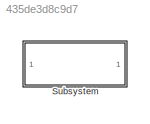
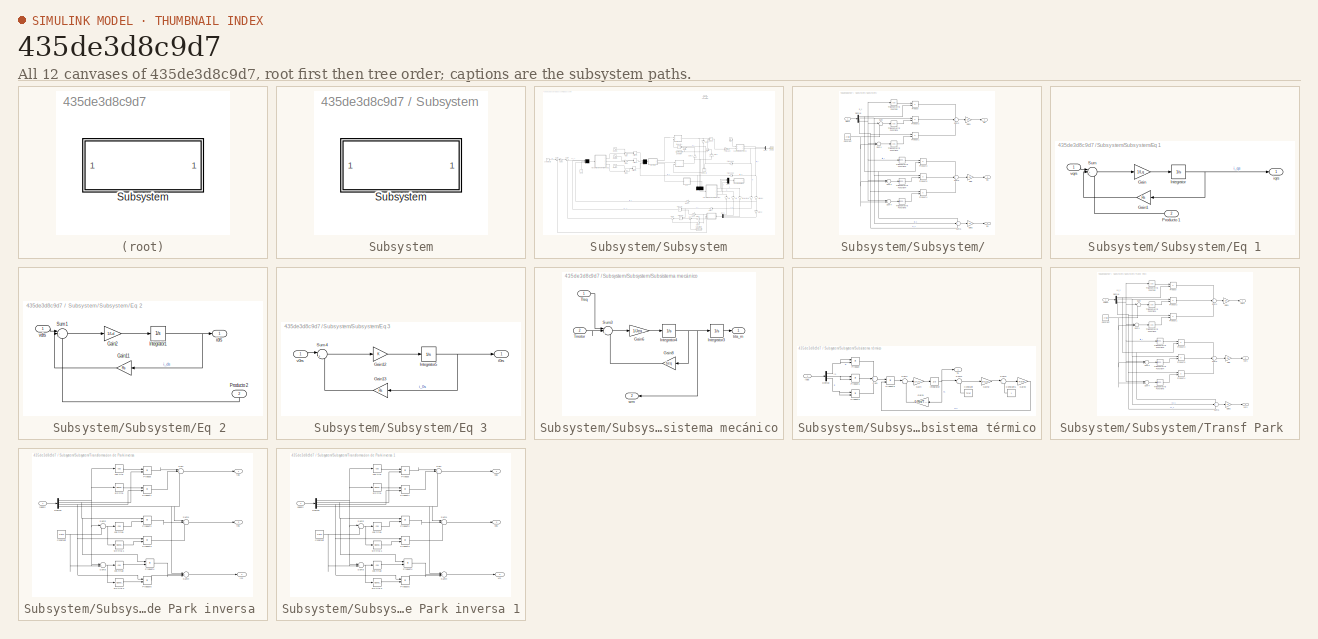
[diagram: thumbnail index - all 12 canvases of the model, root first then tree order]
MODEL slx_435de3d8c9d7
KIND model
CONFIG AbsTol = auto
CONFIG EnableMultiTasking = off
CONFIG FixedStep = auto
CONFIG MaxStep = auto
CONFIG MinStep = auto
CONFIG RelTol = 1e-3
CONFIG SampleTimeConstraint = Unconstrained
CONFIG Solver = VariableStepAuto
CONFIG SolverName = VariableStepAuto
CONFIG StartTime = 0.0
CONFIG StopTime = 10.0
BLOCK [SubSystem] Subsystem
  Ports = []
  RequestExecContextInheritance = off
  Variant = off
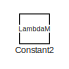
[diagram: Subsystem/Subsystem - part 1/5, top right region]
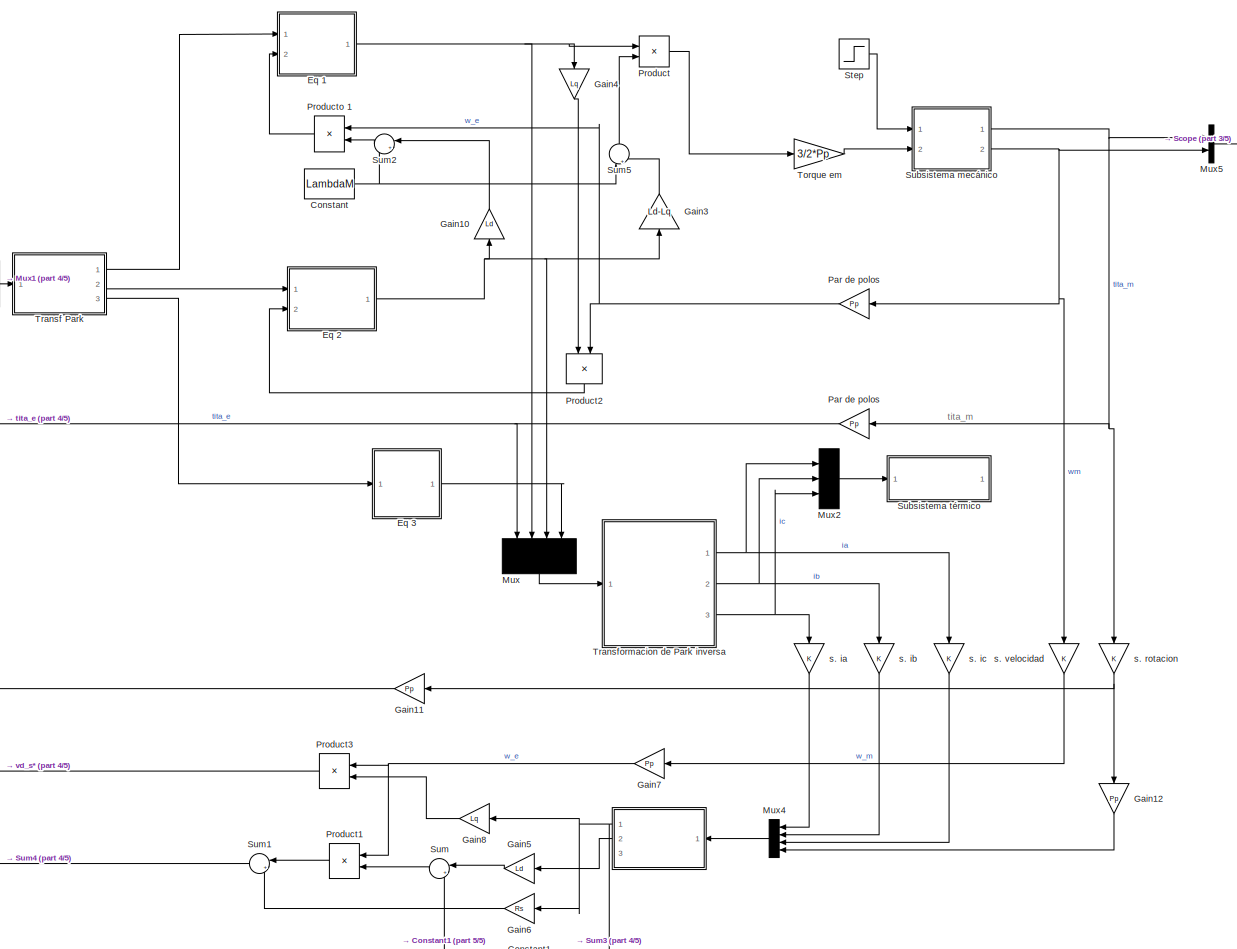
[diagram: Subsystem/Subsystem - part 2/5, middle right region]
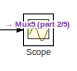
[diagram: Subsystem/Subsystem - part 3/5, middle right region]
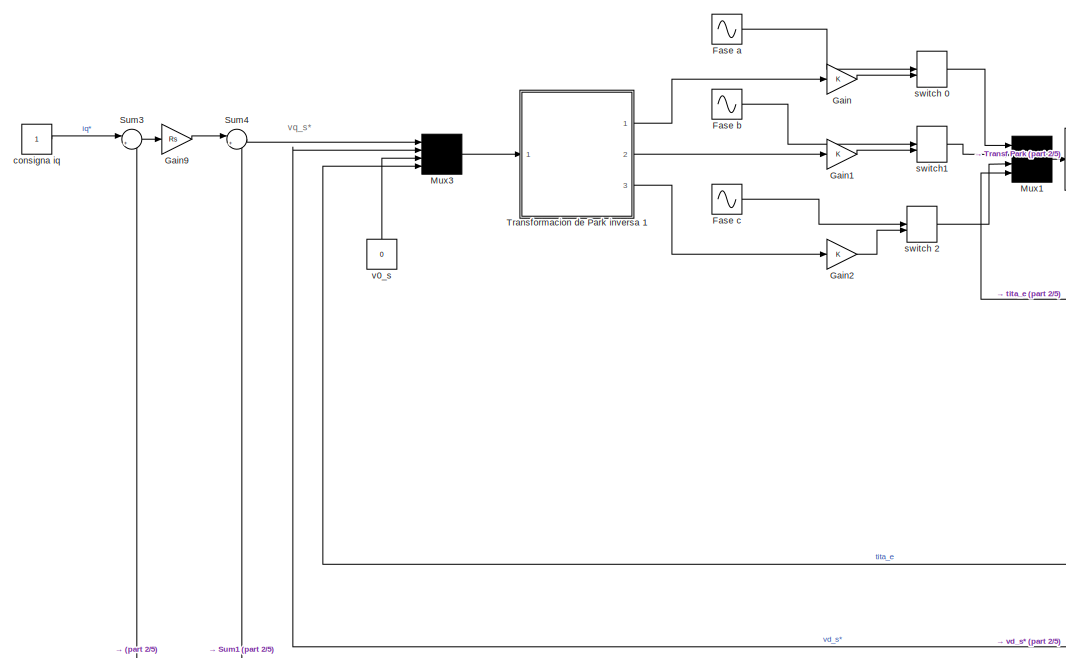
[diagram: Subsystem/Subsystem - part 4/5, middle left region]
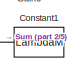
[diagram: Subsystem/Subsystem - part 5/5, bottom right region]
BLOCK [SubSystem] Subsystem/Subsystem
  Ports = []
  RequestExecContextInheritance = off
  Variant = off
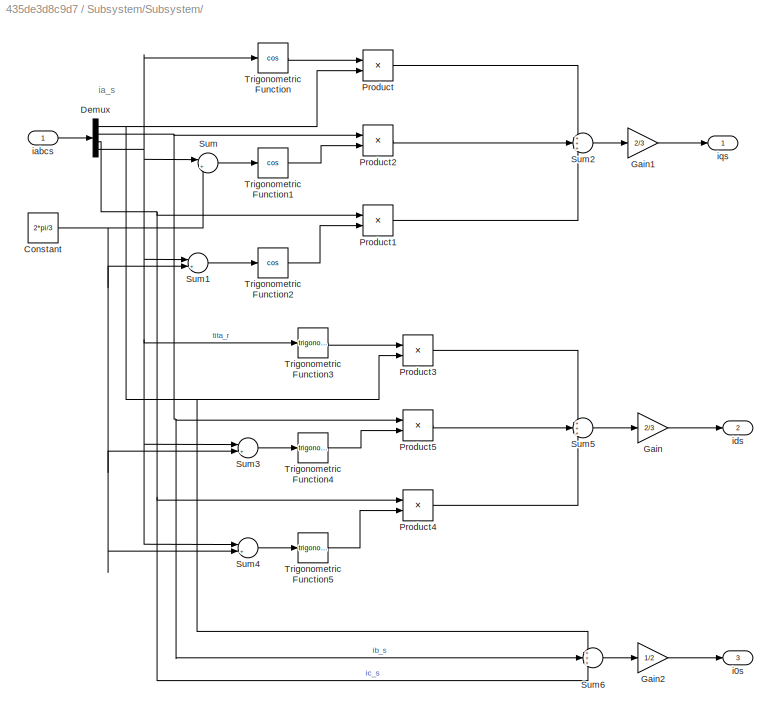
BLOCK [SubSystem] Subsystem/Subsystem/ 
  Ports = [1, 3]
  RequestExecContextInheritance = off
  Variant = off
BLOCK [Constant] Subsystem/Subsystem/ /Constant
  Value = 2*pi/3
BLOCK [Demux] Subsystem/Subsystem/ /Demux
  DisplayOption = bar
  Ports = [1, 4]
BLOCK [Gain] Subsystem/Subsystem/ /Gain
  Gain = 2/3
  OutDataTypeStr = Inherit: Inherit via internal rule
  ParamDataTypeStr = Inherit: Inherit via internal rule
  SaturateOnIntegerOverflow = off
BLOCK [Gain] Subsystem/Subsystem/ /Gain1
  Gain = 2/3
  OutDataTypeStr = Inherit: Inherit via internal rule
  ParamDataTypeStr = Inherit: Inherit via internal rule
  SaturateOnIntegerOverflow = off
BLOCK [Gain] Subsystem/Subsystem/ /Gain2
  Gain = 1/2
  OutDataTypeStr = Inherit: Inherit via internal rule
  ParamDataTypeStr = Inherit: Inherit via internal rule
  SaturateOnIntegerOverflow = off
BLOCK [Product] Subsystem/Subsystem/ /Product
  InputSameDT = off
  OutDataTypeStr = Inherit: Inherit via internal rule
  Ports = [2, 1]
  RndMeth = Floor
  SaturateOnIntegerOverflow = off
BLOCK [Product] Subsystem/Subsystem/ /Product1
  InputSameDT = off
  OutDataTypeStr = Inherit: Inherit via internal rule
  Ports = [2, 1]
  RndMeth = Floor
  SaturateOnIntegerOverflow = off
BLOCK [Product] Subsystem/Subsystem/ /Product2
  InputSameDT = off
  OutDataTypeStr = Inherit: Inherit via internal rule
  Ports = [2, 1]
  RndMeth = Floor
  SaturateOnIntegerOverflow = off
BLOCK [Product] Subsystem/Subsystem/ /Product3
  InputSameDT = off
  OutDataTypeStr = Inherit: Inherit via internal rule
  Ports = [2, 1]
  RndMeth = Floor
  SaturateOnIntegerOverflow = off
BLOCK [Product] Subsystem/Subsystem/ /Product4
  InputSameDT = off
  OutDataTypeStr = Inherit: Inherit via internal rule
  Ports = [2, 1]
  RndMeth = Floor
  SaturateOnIntegerOverflow = off
BLOCK [Product] Subsystem/Subsystem/ /Product5
  InputSameDT = off
  OutDataTypeStr = Inherit: Inherit via internal rule
  Ports = [2, 1]
  RndMeth = Floor
  SaturateOnIntegerOverflow = off
BLOCK [Sum] Subsystem/Subsystem/ /Sum
  IconShape = round
  InputSameDT = off
  Inputs = |+-
  OutDataTypeStr = Inherit: Inherit via internal rule
  Ports = [2, 1]
  SaturateOnIntegerOverflow = off
BLOCK [Sum] Subsystem/Subsystem/ /Sum1
  IconShape = round
  InputSameDT = off
  Inputs = |++
  OutDataTypeStr = Inherit: Inherit via internal rule
  Ports = [2, 1]
  SaturateOnIntegerOverflow = off
BLOCK [Sum] Subsystem/Subsystem/ /Sum2
  IconShape = round
  InputSameDT = off
  Inputs = +++
  OutDataTypeStr = Inherit: Inherit via internal rule
  Ports = [3, 1]
  SaturateOnIntegerOverflow = off
BLOCK [Sum] Subsystem/Subsystem/ /Sum3
  IconShape = round
  InputSameDT = off
  Inputs = |+-
  OutDataTypeStr = Inherit: Inherit via internal rule
  Ports = [2, 1]
  SaturateOnIntegerOverflow = off
BLOCK [Sum] Subsystem/Subsystem/ /Sum4
  IconShape = round
  InputSameDT = off
  Inputs = |++
  OutDataTypeStr = Inherit: Inherit via internal rule
  Ports = [2, 1]
  SaturateOnIntegerOverflow = off
BLOCK [Sum] Subsystem/Subsystem/ /Sum5
  IconShape = round
  InputSameDT = off
  Inputs = +++
  OutDataTypeStr = Inherit: Inherit via internal rule
  Ports = [3, 1]
  SaturateOnIntegerOverflow = off
BLOCK [Sum] Subsystem/Subsystem/ /Sum6
  IconShape = round
  InputSameDT = off
  Inputs = +++
  OutDataTypeStr = Inherit: Inherit via internal rule
  Ports = [3, 1]
  SaturateOnIntegerOverflow = off
BLOCK [Trigonometry] Subsystem/Subsystem/ /Trigonometric Function
  Operator = cos
  Ports = [1, 1]
BLOCK [Trigonometry] Subsystem/Subsystem/ /Trigonometric Function1
  Operator = cos
  Ports = [1, 1]
BLOCK [Trigonometry] Subsystem/Subsystem/ /Trigonometric Function2
  Operator = cos
  Ports = [1, 1]
BLOCK [Trigonometry] Subsystem/Subsystem/ /Trigonometric Function3
  Ports = [1, 1]
BLOCK [Trigonometry] Subsystem/Subsystem/ /Trigonometric Function4
  Ports = [1, 1]
BLOCK [Trigonometry] Subsystem/Subsystem/ /Trigonometric Function5
  Ports = [1, 1]
BLOCK [Outport] Subsystem/Subsystem/ /i0s 
  IconDisplay = Port number
  Port = 3
BLOCK [Inport] Subsystem/Subsystem/ /iabcs 
  IconDisplay = Port number
BLOCK [Outport] Subsystem/Subsystem/ /ids 
  IconDisplay = Port number
  Port = 2
BLOCK [Outport] Subsystem/Subsystem/ /iqs
  IconDisplay = Port number
BLOCK [Constant] Subsystem/Subsystem/Constant
  Value = LambdaM
BLOCK [Constant] Subsystem/Subsystem/Constant1
  Value = LambdaM
BLOCK [Constant] Subsystem/Subsystem/Constant2
  Value = LambdaM
BLOCK [SubSystem] Subsystem/Subsystem/Eq 1
  Ports = [2, 1]
  RequestExecContextInheritance = off
  Variant = off
BLOCK [Gain] Subsystem/Subsystem/Eq 1/Gain
  Gain = 1/Lq
  OutDataTypeStr = Inherit: Inherit via internal rule
  ParamDataTypeStr = Inherit: Inherit via internal rule
  SaturateOnIntegerOverflow = off
BLOCK [Gain] Subsystem/Subsystem/Eq 1/Gain1
  Gain = Rs
  OutDataTypeStr = Inherit: Inherit via internal rule
  ParamDataTypeStr = Inherit: Inherit via internal rule
  SaturateOnIntegerOverflow = off
BLOCK [Integrator] Subsystem/Subsystem/Eq 1/Integrator
  Ports = [1, 1]
BLOCK [Inport] Subsystem/Subsystem/Eq 1/Producto 1 
  IconDisplay = Port number
  Port = 2
BLOCK [Sum] Subsystem/Subsystem/Eq 1/Sum
  IconShape = round
  InputSameDT = off
  Inputs = |+--
  OutDataTypeStr = Inherit: Inherit via internal rule
  Ports = [3, 1]
  SaturateOnIntegerOverflow = off
BLOCK [Outport] Subsystem/Subsystem/Eq 1/iqrs 
  IconDisplay = Port number
BLOCK [Inport] Subsystem/Subsystem/Eq 1/vqrs
  IconDisplay = Port number
BLOCK [SubSystem] Subsystem/Subsystem/Eq 2 
  Ports = [2, 1]
  RequestExecContextInheritance = off
  Variant = off
BLOCK [Gain] Subsystem/Subsystem/Eq 2 /Gain11
  Gain = Rs
  OutDataTypeStr = Inherit: Inherit via internal rule
  ParamDataTypeStr = Inherit: Inherit via internal rule
  SaturateOnIntegerOverflow = off
BLOCK [Gain] Subsystem/Subsystem/Eq 2 /Gain2
  Gain = 1/Ld
  OutDataTypeStr = Inherit: Inherit via internal rule
  ParamDataTypeStr = Inherit: Inherit via internal rule
  SaturateOnIntegerOverflow = off
BLOCK [Integrator] Subsystem/Subsystem/Eq 2 /Integrator1
  Ports = [1, 1]
BLOCK [Inport] Subsystem/Subsystem/Eq 2 /Producto 2 
  IconDisplay = Port number
  Port = 2
BLOCK [Sum] Subsystem/Subsystem/Eq 2 /Sum1
  IconShape = round
  InputSameDT = off
  Inputs = |+-+
  OutDataTypeStr = Inherit: Inherit via internal rule
  Ports = [3, 1]
  SaturateOnIntegerOverflow = off
BLOCK [Outport] Subsystem/Subsystem/Eq 2 /idrs 
  IconDisplay = Port number
BLOCK [Inport] Subsystem/Subsystem/Eq 2 /vdrs 
  IconDisplay = Port number
BLOCK [SubSystem] Subsystem/Subsystem/Eq 3
  Ports = [1, 1]
  RequestExecContextInheritance = off
  Variant = off
BLOCK [Gain] Subsystem/Subsystem/Eq 3/Gain12
  OutDataTypeStr = Inherit: Inherit via internal rule
  ParamDataTypeStr = Inherit: Inherit via internal rule
  SaturateOnIntegerOverflow = off
BLOCK [Gain] Subsystem/Subsystem/Eq 3/Gain13
  Gain = Rs
  OutDataTypeStr = Inherit: Inherit via internal rule
  ParamDataTypeStr = Inherit: Inherit via internal rule
  SaturateOnIntegerOverflow = off
BLOCK [Integrator] Subsystem/Subsystem/Eq 3/Integrator5
  Ports = [1, 1]
BLOCK [Sum] Subsystem/Subsystem/Eq 3/Sum4
  IconShape = round
  InputSameDT = off
  Inputs = |++
  OutDataTypeStr = Inherit: Inherit via internal rule
  Ports = [2, 1]
  SaturateOnIntegerOverflow = off
BLOCK [Outport] Subsystem/Subsystem/Eq 3/i0rs 
  IconDisplay = Port number
BLOCK [Inport] Subsystem/Subsystem/Eq 3/v0rs 
  IconDisplay = Port number
BLOCK [Sin] Subsystem/Subsystem/Fase a
  Ports = [0, 1]
  SampleTime = 0
BLOCK [Sin] Subsystem/Subsystem/Fase b
  Ports = [0, 1]
  SampleTime = 0
BLOCK [Sin] Subsystem/Subsystem/Fase c
  Ports = [0, 1]
  SampleTime = 0
BLOCK [Gain] Subsystem/Subsystem/Gain
  OutDataTypeStr = Inherit: Inherit via internal rule
  ParamDataTypeStr = Inherit: Inherit via internal rule
  SaturateOnIntegerOverflow = off
BLOCK [Gain] Subsystem/Subsystem/Gain1
  OutDataTypeStr = Inherit: Inherit via internal rule
  ParamDataTypeStr = Inherit: Inherit via internal rule
  SaturateOnIntegerOverflow = off
BLOCK [Gain] Subsystem/Subsystem/Gain10
  Gain = Ld
  OutDataTypeStr = Inherit: Inherit via internal rule
  ParamDataTypeStr = Inherit: Inherit via internal rule
  SaturateOnIntegerOverflow = off
BLOCK [Gain] Subsystem/Subsystem/Gain11
  Gain = Pp
  OutDataTypeStr = Inherit: Inherit via internal rule
  ParamDataTypeStr = Inherit: Inherit via internal rule
  SaturateOnIntegerOverflow = off
BLOCK [Gain] Subsystem/Subsystem/Gain12
  Gain = Pp
  OutDataTypeStr = Inherit: Inherit via internal rule
  ParamDataTypeStr = Inherit: Inherit via internal rule
  SaturateOnIntegerOverflow = off
BLOCK [Gain] Subsystem/Subsystem/Gain2
  OutDataTypeStr = Inherit: Inherit via internal rule
  ParamDataTypeStr = Inherit: Inherit via internal rule
  SaturateOnIntegerOverflow = off
BLOCK [Gain] Subsystem/Subsystem/Gain3
  Gain = Ld-Lq
  OutDataTypeStr = Inherit: Inherit via internal rule
  ParamDataTypeStr = Inherit: Inherit via internal rule
  SaturateOnIntegerOverflow = off
BLOCK [Gain] Subsystem/Subsystem/Gain4
  Gain = Lq
  OutDataTypeStr = Inherit: Inherit via internal rule
  ParamDataTypeStr = Inherit: Inherit via internal rule
  SaturateOnIntegerOverflow = off
BLOCK [Gain] Subsystem/Subsystem/Gain5
  Gain = Ld
  OutDataTypeStr = Inherit: Inherit via internal rule
  ParamDataTypeStr = Inherit: Inherit via internal rule
  SaturateOnIntegerOverflow = off
BLOCK [Gain] Subsystem/Subsystem/Gain6
  Gain = Rs
  OutDataTypeStr = Inherit: Inherit via internal rule
  ParamDataTypeStr = Inherit: Inherit via internal rule
  SaturateOnIntegerOverflow = off
BLOCK [Gain] Subsystem/Subsystem/Gain7
  Gain = Pp
  OutDataTypeStr = Inherit: Inherit via internal rule
  ParamDataTypeStr = Inherit: Inherit via internal rule
  SaturateOnIntegerOverflow = off
BLOCK [Gain] Subsystem/Subsystem/Gain8
  Gain = Lq
  OutDataTypeStr = Inherit: Inherit via internal rule
  ParamDataTypeStr = Inherit: Inherit via internal rule
  SaturateOnIntegerOverflow = off
BLOCK [Gain] Subsystem/Subsystem/Gain9
  Gain = Rs
  OutDataTypeStr = Inherit: Inherit via internal rule
  ParamDataTypeStr = Inherit: Inherit via internal rule
  SaturateOnIntegerOverflow = off
BLOCK [Mux] Subsystem/Subsystem/Mux
  DisplayOption = signals
  Ports = [4, 1]
BLOCK [Mux] Subsystem/Subsystem/Mux1
  DisplayOption = signals
  Ports = [4, 1]
BLOCK [Mux] Subsystem/Subsystem/Mux2
  DisplayOption = signals
  Inputs = 3
  Ports = [3, 1]
BLOCK [Mux] Subsystem/Subsystem/Mux3
  DisplayOption = signals
  Ports = [4, 1]
BLOCK [Mux] Subsystem/Subsystem/Mux4
  DisplayOption = bar
  Ports = [4, 1]
BLOCK [Mux] Subsystem/Subsystem/Mux5
  DisplayOption = bar
  Inputs = 2
  Ports = [2, 1]
BLOCK [Gain] Subsystem/Subsystem/Par de polos
  Gain = Pp
  OutDataTypeStr = Inherit: Inherit via internal rule
  ParamDataTypeStr = Inherit: Inherit via internal rule
  SaturateOnIntegerOverflow = off
BLOCK [Gain] Subsystem/Subsystem/Par de polos 
  Gain = Pp
  OutDataTypeStr = Inherit: Inherit via internal rule
  ParamDataTypeStr = Inherit: Inherit via internal rule
  SaturateOnIntegerOverflow = off
BLOCK [Product] Subsystem/Subsystem/Product
  InputSameDT = off
  OutDataTypeStr = Inherit: Inherit via internal rule
  Ports = [2, 1]
  RndMeth = Floor
  SaturateOnIntegerOverflow = off
BLOCK [Product] Subsystem/Subsystem/Product1
  InputSameDT = off
  OutDataTypeStr = Inherit: Inherit via internal rule
  Ports = [2, 1]
  RndMeth = Floor
  SaturateOnIntegerOverflow = off
BLOCK [Product] Subsystem/Subsystem/Product2
  InputSameDT = off
  OutDataTypeStr = Inherit: Inherit via internal rule
  Ports = [2, 1]
  RndMeth = Floor
  SaturateOnIntegerOverflow = off
BLOCK [Product] Subsystem/Subsystem/Product3
  InputSameDT = off
  OutDataTypeStr = Inherit: Inherit via internal rule
  Ports = [2, 1]
  RndMeth = Floor
  SaturateOnIntegerOverflow = off
BLOCK [Product] Subsystem/Subsystem/Producto 1
  InputSameDT = off
  OutDataTypeStr = Inherit: Inherit via internal rule
  Ports = [2, 1]
  RndMeth = Floor
  SaturateOnIntegerOverflow = off
BLOCK [Scope] Subsystem/Subsystem/Scope
  NumInputPorts = 1
  Ports = [1]
  ScopeSpecificationString = Simulink.scopes.TimeScopeBlockCfg('CurrentConfiguration', extmgr.ConfigurationSet(extmgr.Configuration('Core','General UI',true),extmgr.Configuration('Core','Source UI',true),extmgr.Configuration('Sources','WiredSimulink',true),extmgr.Configuration('Visuals','Time Domain',true,'SerializedDisplays',{struct('MinYLimReal','-476961.58728','MaxYLimReal','52995.73192','YLabelReal','','MinYLimMag','    0...<+1413ch>
BLOCK [Step] Subsystem/Subsystem/Step
  After = 6.28
  SampleTime = 0
BLOCK [SubSystem] Subsystem/Subsystem/Subsistema mecánico
  Ports = [2, 2]
  RequestExecContextInheritance = off
  Variant = off
BLOCK [Gain] Subsystem/Subsystem/Subsistema mecánico/Gain6
  Gain = 1/Jeq
  OutDataTypeStr = Inherit: Inherit via internal rule
  ParamDataTypeStr = Inherit: Inherit via internal rule
  SaturateOnIntegerOverflow = off
BLOCK [Gain] Subsystem/Subsystem/Subsistema mecánico/Gain8
  Gain = beq
  OutDataTypeStr = Inherit: Inherit via internal rule
  ParamDataTypeStr = Inherit: Inherit via internal rule
  SaturateOnIntegerOverflow = off
BLOCK [Integrator] Subsystem/Subsystem/Subsistema mecánico/Integrator3
  Ports = [1, 1]
BLOCK [Integrator] Subsystem/Subsystem/Subsistema mecánico/Integrator4
  Ports = [1, 1]
BLOCK [Sum] Subsystem/Subsystem/Subsistema mecánico/Sum3
  IconShape = round
  InputSameDT = off
  Inputs = |-+-
  OutDataTypeStr = Inherit: Inherit via internal rule
  Ports = [3, 1]
  SaturateOnIntegerOverflow = off
BLOCK [Inport] Subsystem/Subsystem/Subsistema mecánico/Tleq 
  IconDisplay = Port number
BLOCK [Inport] Subsystem/Subsystem/Subsistema mecánico/Tmotor 
  IconDisplay = Port number
  Port = 2
BLOCK [Outport] Subsystem/Subsystem/Subsistema mecánico/tita_m 
  IconDisplay = Port number
BLOCK [Outport] Subsystem/Subsystem/Subsistema mecánico/wm 
  IconDisplay = Port number
  Port = 2
BLOCK [SubSystem] Subsystem/Subsystem/Subsistema térmico
  Ports = [1, 1]
  RequestExecContextInheritance = off
  Variant = off
BLOCK [Constant] Subsystem/Subsystem/Subsistema térmico/Constant
  Value = Tsref
BLOCK [Constant] Subsystem/Subsystem/Subsistema térmico/Constant1
BLOCK [Demux] Subsystem/Subsystem/Subsistema térmico/Demux
  DisplayOption = bar
  Outputs = 3
  Ports = [1, 3]
BLOCK [Gain] Subsystem/Subsystem/Subsistema térmico/Gain
  Gain = 1/Cts
  OutDataTypeStr = Inherit: Inherit via internal rule
  ParamDataTypeStr = Inherit: Inherit via internal rule
  SaturateOnIntegerOverflow = off
BLOCK [Gain] Subsystem/Subsystem/Subsistema térmico/Gain1
  Gain = 1/Rts*Tamb
  OutDataTypeStr = Inherit: Inherit via internal rule
  ParamDataTypeStr = Inherit: Inherit via internal rule
  SaturateOnIntegerOverflow = off
BLOCK [Gain] Subsystem/Subsystem/Subsistema térmico/Gain2
  Gain = alfa_cu
  OutDataTypeStr = Inherit: Inherit via internal rule
  ParamDataTypeStr = Inherit: Inherit via internal rule
  SaturateOnIntegerOverflow = off
BLOCK [Gain] Subsystem/Subsystem/Subsistema térmico/Gain3
  Gain = Rsref
  OutDataTypeStr = Inherit: Inherit via internal rule
  ParamDataTypeStr = Inherit: Inherit via internal rule
  SaturateOnIntegerOverflow = off
BLOCK [Integrator] Subsystem/Subsystem/Subsistema térmico/Integrator
  Ports = [1, 1]
BLOCK [Product] Subsystem/Subsystem/Subsistema térmico/Product
  InputSameDT = off
  OutDataTypeStr = Inherit: Inherit via internal rule
  Ports = [2, 1]
  RndMeth = Floor
  SaturateOnIntegerOverflow = off
BLOCK [Product] Subsystem/Subsystem/Subsistema térmico/Product1
  InputSameDT = off
  OutDataTypeStr = Inherit: Inherit via internal rule
  Ports = [2, 1]
  RndMeth = Floor
  SaturateOnIntegerOverflow = off
BLOCK [Product] Subsystem/Subsystem/Subsistema térmico/Product2
  InputSameDT = off
  OutDataTypeStr = Inherit: Inherit via internal rule
  Ports = [2, 1]
  RndMeth = Floor
  SaturateOnIntegerOverflow = off
BLOCK [Product] Subsystem/Subsystem/Subsistema térmico/Product3
  InputSameDT = off
  OutDataTypeStr = Inherit: Inherit via internal rule
  Ports = [2, 1]
  RndMeth = Floor
  SaturateOnIntegerOverflow = off
BLOCK [Sum] Subsystem/Subsystem/Subsistema térmico/Sum
  IconShape = round
  InputSameDT = off
  Inputs = +++
  OutDataTypeStr = Inherit: Inherit via internal rule
  Ports = [3, 1]
  SaturateOnIntegerOverflow = off
BLOCK [Sum] Subsystem/Subsystem/Subsistema térmico/Sum1
  IconShape = round
  InputSameDT = off
  Inputs = |++
  OutDataTypeStr = Inherit: Inherit via internal rule
  Ports = [2, 1]
  SaturateOnIntegerOverflow = off
BLOCK [Sum] Subsystem/Subsystem/Subsistema térmico/Sum2
  IconShape = round
  InputSameDT = off
  Inputs = |+-
  OutDataTypeStr = Inherit: Inherit via internal rule
  Ports = [2, 1]
  SaturateOnIntegerOverflow = off
BLOCK [Sum] Subsystem/Subsystem/Subsistema térmico/Sum3
  IconShape = round
  InputSameDT = off
  Inputs = |++
  OutDataTypeStr = Inherit: Inherit via internal rule
  Ports = [2, 1]
  SaturateOnIntegerOverflow = off
BLOCK [Outport] Subsystem/Subsystem/Subsistema térmico/Ts
  IconDisplay = Port number
BLOCK [Inport] Subsystem/Subsystem/Subsistema térmico/iabc
  IconDisplay = Port number
BLOCK [Sum] Subsystem/Subsystem/Sum
  IconShape = round
  InputSameDT = off
  Inputs = |++
  OutDataTypeStr = Inherit: Inherit via internal rule
  Ports = [2, 1]
  SaturateOnIntegerOverflow = off
BLOCK [Sum] Subsystem/Subsystem/Sum1
  IconShape = round
  InputSameDT = off
  Inputs = |++
  OutDataTypeStr = Inherit: Inherit via internal rule
  Ports = [2, 1]
  SaturateOnIntegerOverflow = off
BLOCK [Sum] Subsystem/Subsystem/Sum2
  IconShape = round
  InputSameDT = off
  Inputs = |++
  OutDataTypeStr = Inherit: Inherit via internal rule
  Ports = [2, 1]
  SaturateOnIntegerOverflow = off
BLOCK [Sum] Subsystem/Subsystem/Sum3
  IconShape = round
  InputSameDT = off
  Inputs = |+-
  OutDataTypeStr = Inherit: Inherit via internal rule
  Ports = [2, 1]
  SaturateOnIntegerOverflow = off
BLOCK [Sum] Subsystem/Subsystem/Sum4
  IconShape = round
  InputSameDT = off
  Inputs = |+-
  OutDataTypeStr = Inherit: Inherit via internal rule
  Ports = [2, 1]
  SaturateOnIntegerOverflow = off
BLOCK [Sum] Subsystem/Subsystem/Sum5
  IconShape = round
  InputSameDT = off
  Inputs = |++
  OutDataTypeStr = Inherit: Inherit via internal rule
  Ports = [2, 1]
  SaturateOnIntegerOverflow = off
BLOCK [Gain] Subsystem/Subsystem/Torque em 
  Gain = 3/2*Pp
  OutDataTypeStr = Inherit: Inherit via internal rule
  ParamDataTypeStr = Inherit: Inherit via internal rule
  SaturateOnIntegerOverflow = off
BLOCK [SubSystem] Subsystem/Subsystem/Transf Park 
  Ports = [1, 3]
  RequestExecContextInheritance = off
  Variant = off
BLOCK [Constant] Subsystem/Subsystem/Transf Park /Constant
  Value = 2*pi/3
BLOCK [Demux] Subsystem/Subsystem/Transf Park /Demux
  DisplayOption = bar
  Ports = [1, 4]
BLOCK [Gain] Subsystem/Subsystem/Transf Park /Gain
  Gain = 2/3
  OutDataTypeStr = Inherit: Inherit via internal rule
  ParamDataTypeStr = Inherit: Inherit via internal rule
  SaturateOnIntegerOverflow = off
BLOCK [Gain] Subsystem/Subsystem/Transf Park /Gain1
  Gain = 2/3
  OutDataTypeStr = Inherit: Inherit via internal rule
  ParamDataTypeStr = Inherit: Inherit via internal rule
  SaturateOnIntegerOverflow = off
BLOCK [Gain] Subsystem/Subsystem/Transf Park /Gain2
  Gain = 1/2
  OutDataTypeStr = Inherit: Inherit via internal rule
  ParamDataTypeStr = Inherit: Inherit via internal rule
  SaturateOnIntegerOverflow = off
BLOCK [Product] Subsystem/Subsystem/Transf Park /Product
  InputSameDT = off
  OutDataTypeStr = Inherit: Inherit via internal rule
  Ports = [2, 1]
  RndMeth = Floor
  SaturateOnIntegerOverflow = off
BLOCK [Product] Subsystem/Subsystem/Transf Park /Product1
  InputSameDT = off
  OutDataTypeStr = Inherit: Inherit via internal rule
  Ports = [2, 1]
  RndMeth = Floor
  SaturateOnIntegerOverflow = off
BLOCK [Product] Subsystem/Subsystem/Transf Park /Product2
  InputSameDT = off
  OutDataTypeStr = Inherit: Inherit via internal rule
  Ports = [2, 1]
  RndMeth = Floor
  SaturateOnIntegerOverflow = off
BLOCK [Product] Subsystem/Subsystem/Transf Park /Product3
  InputSameDT = off
  OutDataTypeStr = Inherit: Inherit via internal rule
  Ports = [2, 1]
  RndMeth = Floor
  SaturateOnIntegerOverflow = off
BLOCK [Product] Subsystem/Subsystem/Transf Park /Product4
  InputSameDT = off
  OutDataTypeStr = Inherit: Inherit via internal rule
  Ports = [2, 1]
  RndMeth = Floor
  SaturateOnIntegerOverflow = off
BLOCK [Product] Subsystem/Subsystem/Transf Park /Product5
  InputSameDT = off
  OutDataTypeStr = Inherit: Inherit via internal rule
  Ports = [2, 1]
  RndMeth = Floor
  SaturateOnIntegerOverflow = off
BLOCK [Sum] Subsystem/Subsystem/Transf Park /Sum
  IconShape = round
  InputSameDT = off
  Inputs = |+-
  OutDataTypeStr = Inherit: Inherit via internal rule
  Ports = [2, 1]
  SaturateOnIntegerOverflow = off
BLOCK [Sum] Subsystem/Subsystem/Transf Park /Sum1
  IconShape = round
  InputSameDT = off
  Inputs = |++
  OutDataTypeStr = Inherit: Inherit via internal rule
  Ports = [2, 1]
  SaturateOnIntegerOverflow = off
BLOCK [Sum] Subsystem/Subsystem/Transf Park /Sum2
  IconShape = round
  InputSameDT = off
  Inputs = +++
  OutDataTypeStr = Inherit: Inherit via internal rule
  Ports = [3, 1]
  SaturateOnIntegerOverflow = off
BLOCK [Sum] Subsystem/Subsystem/Transf Park /Sum3
  IconShape = round
  InputSameDT = off
  Inputs = |+-
  OutDataTypeStr = Inherit: Inherit via internal rule
  Ports = [2, 1]
  SaturateOnIntegerOverflow = off
BLOCK [Sum] Subsystem/Subsystem/Transf Park /Sum4
  IconShape = round
  InputSameDT = off
  Inputs = |++
  OutDataTypeStr = Inherit: Inherit via internal rule
  Ports = [2, 1]
  SaturateOnIntegerOverflow = off
BLOCK [Sum] Subsystem/Subsystem/Transf Park /Sum5
  IconShape = round
  InputSameDT = off
  Inputs = +++
  OutDataTypeStr = Inherit: Inherit via internal rule
  Ports = [3, 1]
  SaturateOnIntegerOverflow = off
BLOCK [Sum] Subsystem/Subsystem/Transf Park /Sum6
  IconShape = round
  InputSameDT = off
  Inputs = +++
  OutDataTypeStr = Inherit: Inherit via internal rule
  Ports = [3, 1]
  SaturateOnIntegerOverflow = off
BLOCK [Trigonometry] Subsystem/Subsystem/Transf Park /Trigonometric Function
  Operator = cos
  Ports = [1, 1]
BLOCK [Trigonometry] Subsystem/Subsystem/Transf Park /Trigonometric Function1
  Operator = cos
  Ports = [1, 1]
BLOCK [Trigonometry] Subsystem/Subsystem/Transf Park /Trigonometric Function2
  Operator = cos
  Ports = [1, 1]
BLOCK [Trigonometry] Subsystem/Subsystem/Transf Park /Trigonometric Function3
  Ports = [1, 1]
BLOCK [Trigonometry] Subsystem/Subsystem/Transf Park /Trigonometric Function4
  Ports = [1, 1]
BLOCK [Trigonometry] Subsystem/Subsystem/Transf Park /Trigonometric Function5
  Ports = [1, 1]
BLOCK [Outport] Subsystem/Subsystem/Transf Park /v0rs 
  IconDisplay = Port number
  Port = 3
BLOCK [Inport] Subsystem/Subsystem/Transf Park /vabcs 
  IconDisplay = Port number
BLOCK [Outport] Subsystem/Subsystem/Transf Park /vdrs 
  IconDisplay = Port number
  Port = 2
BLOCK [Outport] Subsystem/Subsystem/Transf Park /vqrs
  IconDisplay = Port number
BLOCK [SubSystem] Subsystem/Subsystem/Transformacion de Park inversa 
  Ports = [1, 3]
  RequestExecContextInheritance = off
  Variant = off
BLOCK [Constant] Subsystem/Subsystem/Transformacion de Park inversa /Constant
  Value = 2*pi/3
BLOCK [Demux] Subsystem/Subsystem/Transformacion de Park inversa /Demux
  DisplayOption = bar
  Ports = [1, 4]
BLOCK [Product] Subsystem/Subsystem/Transformacion de Park inversa /Product
  InputSameDT = off
  OutDataTypeStr = Inherit: Inherit via internal rule
  Ports = [2, 1]
  RndMeth = Floor
  SaturateOnIntegerOverflow = off
BLOCK [Product] Subsystem/Subsystem/Transformacion de Park inversa /Product1
  InputSameDT = off
  OutDataTypeStr = Inherit: Inherit via internal rule
  Ports = [2, 1]
  RndMeth = Floor
  SaturateOnIntegerOverflow = off
BLOCK [Product] Subsystem/Subsystem/Transformacion de Park inversa /Product2
  InputSameDT = off
  OutDataTypeStr = Inherit: Inherit via internal rule
  Ports = [2, 1]
  RndMeth = Floor
  SaturateOnIntegerOverflow = off
BLOCK [Product] Subsystem/Subsystem/Transformacion de Park inversa /Product3
  InputSameDT = off
  OutDataTypeStr = Inherit: Inherit via internal rule
  Ports = [2, 1]
  RndMeth = Floor
  SaturateOnIntegerOverflow = off
BLOCK [Product] Subsystem/Subsystem/Transformacion de Park inversa /Product4
  InputSameDT = off
  OutDataTypeStr = Inherit: Inherit via internal rule
  Ports = [2, 1]
  RndMeth = Floor
  SaturateOnIntegerOverflow = off
BLOCK [Product] Subsystem/Subsystem/Transformacion de Park inversa /Product5
  InputSameDT = off
  OutDataTypeStr = Inherit: Inherit via internal rule
  Ports = [2, 1]
  RndMeth = Floor
  SaturateOnIntegerOverflow = off
BLOCK [Sum] Subsystem/Subsystem/Transformacion de Park inversa /Sum
  IconShape = round
  InputSameDT = off
  Inputs = |+++
  OutDataTypeStr = Inherit: Inherit via internal rule
  Ports = [3, 1]
  SaturateOnIntegerOverflow = off
BLOCK [Sum] Subsystem/Subsystem/Transformacion de Park inversa /Sum1
  IconShape = round
  InputSameDT = off
  Inputs = |+++
  OutDataTypeStr = Inherit: Inherit via internal rule
  Ports = [3, 1]
  SaturateOnIntegerOverflow = off
BLOCK [Sum] Subsystem/Subsystem/Transformacion de Park inversa /Sum2
  IconShape = round
  InputSameDT = off
  Inputs = |+-
  OutDataTypeStr = Inherit: Inherit via internal rule
  Ports = [2, 1]
  SaturateOnIntegerOverflow = off
BLOCK [Sum] Subsystem/Subsystem/Transformacion de Park inversa /Sum3
  IconShape = round
  InputSameDT = off
  Inputs = |++
  OutDataTypeStr = Inherit: Inherit via internal rule
  Ports = [2, 1]
  SaturateOnIntegerOverflow = off
BLOCK [Sum] Subsystem/Subsystem/Transformacion de Park inversa /Sum4
  IconShape = round
  InputSameDT = off
  Inputs = |+++
  OutDataTypeStr = Inherit: Inherit via internal rule
  Ports = [3, 1]
  SaturateOnIntegerOverflow = off
BLOCK [Trigonometry] Subsystem/Subsystem/Transformacion de Park inversa /cos tita
  Operator = cos
  Ports = [1, 1]
BLOCK [Trigonometry] Subsystem/Subsystem/Transformacion de Park inversa /cos tita1
  Operator = cos
  Ports = [1, 1]
BLOCK [Trigonometry] Subsystem/Subsystem/Transformacion de Park inversa /cos tita2
  Operator = cos
  Ports = [1, 1]
BLOCK [Outport] Subsystem/Subsystem/Transformacion de Park inversa /ias
  IconDisplay = Port number
BLOCK [Outport] Subsystem/Subsystem/Transformacion de Park inversa /ibs
  IconDisplay = Port number
  Port = 3
BLOCK [Outport] Subsystem/Subsystem/Transformacion de Park inversa /ics 
  IconDisplay = Port number
  Port = 2
BLOCK [Inport] Subsystem/Subsystem/Transformacion de Park inversa /iqd0rs
  IconDisplay = Port number
BLOCK [Trigonometry] Subsystem/Subsystem/Transformacion de Park inversa /sin tita 
  Ports = [1, 1]
BLOCK [Trigonometry] Subsystem/Subsystem/Transformacion de Park inversa /sin tita 1
  Ports = [1, 1]
BLOCK [Trigonometry] Subsystem/Subsystem/Transformacion de Park inversa /sin tita 2
  Ports = [1, 1]
BLOCK [SubSystem] Subsystem/Subsystem/Transformacion de Park inversa 1
  Ports = [1, 3]
  RequestExecContextInheritance = off
  Variant = off
BLOCK [Constant] Subsystem/Subsystem/Transformacion de Park inversa 1/Constant
  Value = 2*pi/3
BLOCK [Demux] Subsystem/Subsystem/Transformacion de Park inversa 1/Demux
  DisplayOption = bar
  Ports = [1, 4]
BLOCK [Product] Subsystem/Subsystem/Transformacion de Park inversa 1/Product
  InputSameDT = off
  OutDataTypeStr = Inherit: Inherit via internal rule
  Ports = [2, 1]
  RndMeth = Floor
  SaturateOnIntegerOverflow = off
BLOCK [Product] Subsystem/Subsystem/Transformacion de Park inversa 1/Product1
  InputSameDT = off
  OutDataTypeStr = Inherit: Inherit via internal rule
  Ports = [2, 1]
  RndMeth = Floor
  SaturateOnIntegerOverflow = off
BLOCK [Product] Subsystem/Subsystem/Transformacion de Park inversa 1/Product2
  InputSameDT = off
  OutDataTypeStr = Inherit: Inherit via internal rule
  Ports = [2, 1]
  RndMeth = Floor
  SaturateOnIntegerOverflow = off
BLOCK [Product] Subsystem/Subsystem/Transformacion de Park inversa 1/Product3
  InputSameDT = off
  OutDataTypeStr = Inherit: Inherit via internal rule
  Ports = [2, 1]
  RndMeth = Floor
  SaturateOnIntegerOverflow = off
BLOCK [Product] Subsystem/Subsystem/Transformacion de Park inversa 1/Product4
  InputSameDT = off
  OutDataTypeStr = Inherit: Inherit via internal rule
  Ports = [2, 1]
  RndMeth = Floor
  SaturateOnIntegerOverflow = off
BLOCK [Product] Subsystem/Subsystem/Transformacion de Park inversa 1/Product5
  InputSameDT = off
  OutDataTypeStr = Inherit: Inherit via internal rule
  Ports = [2, 1]
  RndMeth = Floor
  SaturateOnIntegerOverflow = off
BLOCK [Sum] Subsystem/Subsystem/Transformacion de Park inversa 1/Sum
  IconShape = round
  InputSameDT = off
  Inputs = |+++
  OutDataTypeStr = Inherit: Inherit via internal rule
  Ports = [3, 1]
  SaturateOnIntegerOverflow = off
BLOCK [Sum] Subsystem/Subsystem/Transformacion de Park inversa 1/Sum1
  IconShape = round
  InputSameDT = off
  Inputs = |+++
  OutDataTypeStr = Inherit: Inherit via internal rule
  Ports = [3, 1]
  SaturateOnIntegerOverflow = off
BLOCK [Sum] Subsystem/Subsystem/Transformacion de Park inversa 1/Sum2
  IconShape = round
  InputSameDT = off
  Inputs = |+-
  OutDataTypeStr = Inherit: Inherit via internal rule
  Ports = [2, 1]
  SaturateOnIntegerOverflow = off
BLOCK [Sum] Subsystem/Subsystem/Transformacion de Park inversa 1/Sum3
  IconShape = round
  InputSameDT = off
  Inputs = |++
  OutDataTypeStr = Inherit: Inherit via internal rule
  Ports = [2, 1]
  SaturateOnIntegerOverflow = off
BLOCK [Sum] Subsystem/Subsystem/Transformacion de Park inversa 1/Sum4
  IconShape = round
  InputSameDT = off
  Inputs = |+++
  OutDataTypeStr = Inherit: Inherit via internal rule
  Ports = [3, 1]
  SaturateOnIntegerOverflow = off
BLOCK [Trigonometry] Subsystem/Subsystem/Transformacion de Park inversa 1/cos tita
  Operator = cos
  Ports = [1, 1]
BLOCK [Trigonometry] Subsystem/Subsystem/Transformacion de Park inversa 1/cos tita1
  Operator = cos
  Ports = [1, 1]
BLOCK [Trigonometry] Subsystem/Subsystem/Transformacion de Park inversa 1/cos tita2
  Operator = cos
  Ports = [1, 1]
BLOCK [Trigonometry] Subsystem/Subsystem/Transformacion de Park inversa 1/sin tita 
  Ports = [1, 1]
BLOCK [Trigonometry] Subsystem/Subsystem/Transformacion de Park inversa 1/sin tita 1
  Ports = [1, 1]
BLOCK [Trigonometry] Subsystem/Subsystem/Transformacion de Park inversa 1/sin tita 2
  Ports = [1, 1]
BLOCK [Outport] Subsystem/Subsystem/Transformacion de Park inversa 1/vas
  IconDisplay = Port number
BLOCK [Outport] Subsystem/Subsystem/Transformacion de Park inversa 1/vbs
  IconDisplay = Port number
  Port = 3
BLOCK [Outport] Subsystem/Subsystem/Transformacion de Park inversa 1/vcs 
  IconDisplay = Port number
  Port = 2
BLOCK [Inport] Subsystem/Subsystem/Transformacion de Park inversa 1/vqd0rs
  IconDisplay = Port number
BLOCK [Constant] Subsystem/Subsystem/consigna iq
BLOCK [Gain] Subsystem/Subsystem/s. ia
  OutDataTypeStr = Inherit: Inherit via internal rule
  ParamDataTypeStr = Inherit: Inherit via internal rule
  SaturateOnIntegerOverflow = off
BLOCK [Gain] Subsystem/Subsystem/s. ib
  OutDataTypeStr = Inherit: Inherit via internal rule
  ParamDataTypeStr = Inherit: Inherit via internal rule
  SaturateOnIntegerOverflow = off
BLOCK [Gain] Subsystem/Subsystem/s. ic 
  OutDataTypeStr = Inherit: Inherit via internal rule
  ParamDataTypeStr = Inherit: Inherit via internal rule
  SaturateOnIntegerOverflow = off
BLOCK [Gain] Subsystem/Subsystem/s. rotacion
  OutDataTypeStr = Inherit: Inherit via internal rule
  ParamDataTypeStr = Inherit: Inherit via internal rule
  SaturateOnIntegerOverflow = off
BLOCK [Gain] Subsystem/Subsystem/s. velocidad
  OutDataTypeStr = Inherit: Inherit via internal rule
  ParamDataTypeStr = Inherit: Inherit via internal rule
  SaturateOnIntegerOverflow = off
BLOCK [ManualSwitch] Subsystem/Subsystem/switch 0
  CurrentSetting = 0
BLOCK [ManualSwitch] Subsystem/Subsystem/switch 2 
  CurrentSetting = 0
BLOCK [ManualSwitch] Subsystem/Subsystem/switch1
  CurrentSetting = 0
BLOCK [Constant] Subsystem/Subsystem/v0_s
  Value = 0
ANNOTATION Subsystem/Subsystem: tita_m
ANNOTATION Subsystem/Subsystem: vq_s*
ANNOTATION Subsystem/Subsystem/ : ia_s
ANNOTATION Subsystem/Subsystem/Subsistema térmico: ib
ANNOTATION Subsystem/Subsystem/Transf Park : va_s
NET Subsystem/Subsystem/ /Constant:1 -> Subsystem/Subsystem/ /Sum1:2, Subsystem/Subsystem/ /Sum3:2, Subsystem/Subsystem/ /Sum4:2, Subsystem/Subsystem/ /Sum:2
NET Subsystem/Subsystem/ /Demux:1 -> Subsystem/Subsystem/ /Product3:2, Subsystem/Subsystem/ /Product:2, Subsystem/Subsystem/ /Sum6:1
NET Subsystem/Subsystem/ /Demux:2 -> Subsystem/Subsystem/ /Product2:1, Subsystem/Subsystem/ /Product5:1, Subsystem/Subsystem/ /Sum6:2
NET Subsystem/Subsystem/ /Demux:3 -> Subsystem/Subsystem/ /Product1:1, Subsystem/Subsystem/ /Product4:1, Subsystem/Subsystem/ /Sum6:3
NET Subsystem/Subsystem/ /Demux:4 -> Subsystem/Subsystem/ /Sum1:1, Subsystem/Subsystem/ /Sum3:1, Subsystem/Subsystem/ /Sum4:1, Subsystem/Subsystem/ /Sum:1, Subsystem/Subsystem/ /Trigonometric Function3:1, Subsystem/Subsystem/ /Trigonometric Function:1
LINE Subsystem/Subsystem/ /Gain1:1 -> Subsystem/Subsystem/ /iqs:1
LINE Subsystem/Subsystem/ /Gain2:1 -> Subsystem/Subsystem/ /i0s :1
LINE Subsystem/Subsystem/ /Gain:1 -> Subsystem/Subsystem/ /ids :1
LINE Subsystem/Subsystem/ /Product1:1 -> Subsystem/Subsystem/ /Sum2:3
LINE Subsystem/Subsystem/ /Product2:1 -> Subsystem/Subsystem/ /Sum2:2
LINE Subsystem/Subsystem/ /Product3:1 -> Subsystem/Subsystem/ /Sum5:1
LINE Subsystem/Subsystem/ /Product4:1 -> Subsystem/Subsystem/ /Sum5:3
LINE Subsystem/Subsystem/ /Product5:1 -> Subsystem/Subsystem/ /Sum5:2
LINE Subsystem/Subsystem/ /Product:1 -> Subsystem/Subsystem/ /Sum2:1
LINE Subsystem/Subsystem/ /Sum1:1 -> Subsystem/Subsystem/ /Trigonometric Function2:1
LINE Subsystem/Subsystem/ /Sum2:1 -> Subsystem/Subsystem/ /Gain1:1
LINE Subsystem/Subsystem/ /Sum3:1 -> Subsystem/Subsystem/ /Trigonometric Function4:1
LINE Subsystem/Subsystem/ /Sum4:1 -> Subsystem/Subsystem/ /Trigonometric Function5:1
LINE Subsystem/Subsystem/ /Sum5:1 -> Subsystem/Subsystem/ /Gain:1
LINE Subsystem/Subsystem/ /Sum6:1 -> Subsystem/Subsystem/ /Gain2:1
LINE Subsystem/Subsystem/ /Sum:1 -> Subsystem/Subsystem/ /Trigonometric Function1:1
LINE Subsystem/Subsystem/ /Trigonometric Function1:1 -> Subsystem/Subsystem/ /Product2:2
LINE Subsystem/Subsystem/ /Trigonometric Function2:1 -> Subsystem/Subsystem/ /Product1:2
LINE Subsystem/Subsystem/ /Trigonometric Function3:1 -> Subsystem/Subsystem/ /Product3:1
LINE Subsystem/Subsystem/ /Trigonometric Function4:1 -> Subsystem/Subsystem/ /Product5:2
LINE Subsystem/Subsystem/ /Trigonometric Function5:1 -> Subsystem/Subsystem/ /Product4:2
LINE Subsystem/Subsystem/ /Trigonometric Function:1 -> Subsystem/Subsystem/ /Product:1
LINE Subsystem/Subsystem/ /iabcs :1 -> Subsystem/Subsystem/ /Demux:1
NET Subsystem/Subsystem/ :1 -> Subsystem/Subsystem/Gain6:1, Subsystem/Subsystem/Gain8:1, Subsystem/Subsystem/Sum3:2
LINE Subsystem/Subsystem/ :2 -> Subsystem/Subsystem/Gain5:1
LINE Subsystem/Subsystem/Constant1:1 -> Subsystem/Subsystem/Sum:2
NET Subsystem/Subsystem/Constant:1 -> Subsystem/Subsystem/Sum2:2, Subsystem/Subsystem/Sum5:1
LINE Subsystem/Subsystem/Eq 1/Gain1:1 -> Subsystem/Subsystem/Eq 1/Sum:2
LINE Subsystem/Subsystem/Eq 1/Gain:1 -> Subsystem/Subsystem/Eq 1/Integrator:1
NET Subsystem/Subsystem/Eq 1/Integrator:1 -> Subsystem/Subsystem/Eq 1/Gain1:1, Subsystem/Subsystem/Eq 1/iqrs :1
LINE Subsystem/Subsystem/Eq 1/Producto 1 :1 -> Subsystem/Subsystem/Eq 1/Sum:3
LINE Subsystem/Subsystem/Eq 1/Sum:1 -> Subsystem/Subsystem/Eq 1/Gain:1
LINE Subsystem/Subsystem/Eq 1/vqrs:1 -> Subsystem/Subsystem/Eq 1/Sum:1
NET Subsystem/Subsystem/Eq 1:1 -> Subsystem/Subsystem/Gain4:1, Subsystem/Subsystem/Mux:2, Subsystem/Subsystem/Product:1
LINE Subsystem/Subsystem/Eq 2 /Gain11:1 -> Subsystem/Subsystem/Eq 2 /Sum1:2
LINE Subsystem/Subsystem/Eq 2 /Gain2:1 -> Subsystem/Subsystem/Eq 2 /Integrator1:1
NET Subsystem/Subsystem/Eq 2 /Integrator1:1 -> Subsystem/Subsystem/Eq 2 /Gain11:1, Subsystem/Subsystem/Eq 2 /idrs :1
LINE Subsystem/Subsystem/Eq 2 /Producto 2 :1 -> Subsystem/Subsystem/Eq 2 /Sum1:3
LINE Subsystem/Subsystem/Eq 2 /Sum1:1 -> Subsystem/Subsystem/Eq 2 /Gain2:1
LINE Subsystem/Subsystem/Eq 2 /vdrs :1 -> Subsystem/Subsystem/Eq 2 /Sum1:1
NET Subsystem/Subsystem/Eq 2 :1 -> Subsystem/Subsystem/Gain10:1, Subsystem/Subsystem/Gain3:1, Subsystem/Subsystem/Mux:3
LINE Subsystem/Subsystem/Eq 3/Gain12:1 -> Subsystem/Subsystem/Eq 3/Integrator5:1
LINE Subsystem/Subsystem/Eq 3/Gain13:1 -> Subsystem/Subsystem/Eq 3/Sum4:2
NET Subsystem/Subsystem/Eq 3/Integrator5:1 -> Subsystem/Subsystem/Eq 3/Gain13:1, Subsystem/Subsystem/Eq 3/i0rs :1
LINE Subsystem/Subsystem/Eq 3/Sum4:1 -> Subsystem/Subsystem/Eq 3/Gain12:1
LINE Subsystem/Subsystem/Eq 3/v0rs :1 -> Subsystem/Subsystem/Eq 3/Sum4:1
LINE Subsystem/Subsystem/Eq 3:1 -> Subsystem/Subsystem/Mux:4
LINE Subsystem/Subsystem/Fase a:1 -> Subsystem/Subsystem/switch 0:1
LINE Subsystem/Subsystem/Fase b:1 -> Subsystem/Subsystem/switch1:1
LINE Subsystem/Subsystem/Fase c:1 -> Subsystem/Subsystem/switch 2 :1
LINE Subsystem/Subsystem/Gain10:1 -> Subsystem/Subsystem/Sum2:1
LINE Subsystem/Subsystem/Gain11:1 -> Subsystem/Subsystem/Mux3:4
LINE Subsystem/Subsystem/Gain12:1 -> Subsystem/Subsystem/Mux4:4
LINE Subsystem/Subsystem/Gain1:1 -> Subsystem/Subsystem/switch1:2
LINE Subsystem/Subsystem/Gain2:1 -> Subsystem/Subsystem/switch 2 :2
LINE Subsystem/Subsystem/Gain3:1 -> Subsystem/Subsystem/Sum5:2
LINE Subsystem/Subsystem/Gain4:1 -> Subsystem/Subsystem/Product2:1
LINE Subsystem/Subsystem/Gain5:1 -> Subsystem/Subsystem/Sum:1
LINE Subsystem/Subsystem/Gain6:1 -> Subsystem/Subsystem/Sum1:2
NET Subsystem/Subsystem/Gain7:1 -> Subsystem/Subsystem/Product1:1, Subsystem/Subsystem/Product3:1
LINE Subsystem/Subsystem/Gain8:1 -> Subsystem/Subsystem/Product3:2
LINE Subsystem/Subsystem/Gain9:1 -> Subsystem/Subsystem/Sum4:1
LINE Subsystem/Subsystem/Gain:1 -> Subsystem/Subsystem/switch 0:2
LINE Subsystem/Subsystem/Mux1:1 -> Subsystem/Subsystem/Transf Park :1
LINE Subsystem/Subsystem/Mux2:1 -> Subsystem/Subsystem/Subsistema térmico:1
LINE Subsystem/Subsystem/Mux3:1 -> Subsystem/Subsystem/Transformacion de Park inversa 1:1
LINE Subsystem/Subsystem/Mux4:1 -> Subsystem/Subsystem/ :1
LINE Subsystem/Subsystem/Mux5:1 -> Subsystem/Subsystem/Scope:1
LINE Subsystem/Subsystem/Mux:1 -> Subsystem/Subsystem/Transformacion de Park inversa :1
NET Subsystem/Subsystem/Par de polos :1 -> Subsystem/Subsystem/Mux1:4, Subsystem/Subsystem/Mux:1
NET Subsystem/Subsystem/Par de polos:1 -> Subsystem/Subsystem/Product2:2, Subsystem/Subsystem/Producto 1:1
LINE Subsystem/Subsystem/Product1:1 -> Subsystem/Subsystem/Sum1:1
LINE Subsystem/Subsystem/Product2:1 -> Subsystem/Subsystem/Eq 2 :2
LINE Subsystem/Subsystem/Product3:1 -> Subsystem/Subsystem/Mux3:2
LINE Subsystem/Subsystem/Product:1 -> Subsystem/Subsystem/Torque em :1
LINE Subsystem/Subsystem/Producto 1:1 -> Subsystem/Subsystem/Eq 1:2
LINE Subsystem/Subsystem/Step:1 -> Subsystem/Subsystem/Subsistema mecánico:1
LINE Subsystem/Subsystem/Subsistema mecánico/Gain6:1 -> Subsystem/Subsystem/Subsistema mecánico/Integrator4:1
LINE Subsystem/Subsystem/Subsistema mecánico/Gain8:1 -> Subsystem/Subsystem/Subsistema mecánico/Sum3:3
LINE Subsystem/Subsystem/Subsistema mecánico/Integrator3:1 -> Subsystem/Subsystem/Subsistema mecánico/tita_m :1
NET Subsystem/Subsystem/Subsistema mecánico/Integrator4:1 -> Subsystem/Subsystem/Subsistema mecánico/Gain8:1, Subsystem/Subsystem/Subsistema mecánico/Integrator3:1, Subsystem/Subsystem/Subsistema mecánico/wm :1
LINE Subsystem/Subsystem/Subsistema mecánico/Sum3:1 -> Subsystem/Subsystem/Subsistema mecánico/Gain6:1
LINE Subsystem/Subsystem/Subsistema mecánico/Tleq :1 -> Subsystem/Subsystem/Subsistema mecánico/Sum3:1
LINE Subsystem/Subsystem/Subsistema mecánico/Tmotor :1 -> Subsystem/Subsystem/Subsistema mecánico/Sum3:2
NET Subsystem/Subsystem/Subsistema mecánico:1 -> Subsystem/Subsystem/Mux5:1, Subsystem/Subsystem/Par de polos :1, Subsystem/Subsystem/s. rotacion:1
NET Subsystem/Subsystem/Subsistema mecánico:2 -> Subsystem/Subsystem/Mux5:2, Subsystem/Subsystem/Par de polos:1, Subsystem/Subsystem/s. velocidad:1
LINE Subsystem/Subsystem/Subsistema térmico/Constant1:1 -> Subsystem/Subsystem/Subsistema térmico/Sum3:2
LINE Subsystem/Subsystem/Subsistema térmico/Constant:1 -> Subsystem/Subsystem/Subsistema térmico/Sum2:2
NET Subsystem/Subsystem/Subsistema térmico/Demux:1 -> Subsystem/Subsystem/Subsistema térmico/Product:1, Subsystem/Subsystem/Subsistema térmico/Product:2
NET Subsystem/Subsystem/Subsistema térmico/Demux:2 -> Subsystem/Subsystem/Subsistema térmico/Product1:1, Subsystem/Subsystem/Subsistema térmico/Product1:2
NET Subsystem/Subsystem/Subsistema térmico/Demux:3 -> Subsystem/Subsystem/Subsistema térmico/Product2:1, Subsystem/Subsystem/Subsistema térmico/Product2:2
LINE Subsystem/Subsystem/Subsistema térmico/Gain1:1 -> Subsystem/Subsystem/Subsistema térmico/Sum1:2
LINE Subsystem/Subsystem/Subsistema térmico/Gain2:1 -> Subsystem/Subsystem/Subsistema térmico/Sum3:1
LINE Subsystem/Subsystem/Subsistema térmico/Gain3:1 -> Subsystem/Subsystem/Subsistema térmico/Product3:2
LINE Subsystem/Subsystem/Subsistema térmico/Gain:1 -> Subsystem/Subsystem/Subsistema térmico/Integrator:1
NET Subsystem/Subsystem/Subsistema térmico/Integrator:1 -> Subsystem/Subsystem/Subsistema térmico/Gain1:1, Subsystem/Subsystem/Subsistema térmico/Sum2:1, Subsystem/Subsystem/Subsistema térmico/Ts:1
LINE Subsystem/Subsystem/Subsistema térmico/Product1:1 -> Subsystem/Subsystem/Subsistema térmico/Sum:2
LINE Subsystem/Subsystem/Subsistema térmico/Product2:1 -> Subsystem/Subsystem/Subsistema térmico/Sum:3
LINE Subsystem/Subsystem/Subsistema térmico/Product3:1 -> Subsystem/Subsystem/Subsistema térmico/Sum1:1
LINE Subsystem/Subsystem/Subsistema térmico/Product:1 -> Subsystem/Subsystem/Subsistema térmico/Sum:1
LINE Subsystem/Subsystem/Subsistema térmico/Sum1:1 -> Subsystem/Subsystem/Subsistema térmico/Gain:1
LINE Subsystem/Subsystem/Subsistema térmico/Sum2:1 -> Subsystem/Subsystem/Subsistema térmico/Gain2:1
LINE Subsystem/Subsystem/Subsistema térmico/Sum3:1 -> Subsystem/Subsystem/Subsistema térmico/Gain3:1
LINE Subsystem/Subsystem/Subsistema térmico/Sum:1 -> Subsystem/Subsystem/Subsistema térmico/Product3:1
LINE Subsystem/Subsystem/Subsistema térmico/iabc:1 -> Subsystem/Subsystem/Subsistema térmico/Demux:1
LINE Subsystem/Subsystem/Sum1:1 -> Subsystem/Subsystem/Sum4:2
LINE Subsystem/Subsystem/Sum2:1 -> Subsystem/Subsystem/Producto 1:2
LINE Subsystem/Subsystem/Sum3:1 -> Subsystem/Subsystem/Gain9:1
LINE Subsystem/Subsystem/Sum4:1 -> Subsystem/Subsystem/Mux3:1
LINE Subsystem/Subsystem/Sum5:1 -> Subsystem/Subsystem/Product:2
LINE Subsystem/Subsystem/Sum:1 -> Subsystem/Subsystem/Product1:2
LINE Subsystem/Subsystem/Torque em :1 -> Subsystem/Subsystem/Subsistema mecánico:2
NET Subsystem/Subsystem/Transf Park /Constant:1 -> Subsystem/Subsystem/Transf Park /Sum1:2, Subsystem/Subsystem/Transf Park /Sum3:2, Subsystem/Subsystem/Transf Park /Sum4:2, Subsystem/Subsystem/Transf Park /Sum:2
NET Subsystem/Subsystem/Transf Park /Demux:1 -> Subsystem/Subsystem/Transf Park /Product3:2, Subsystem/Subsystem/Transf Park /Product:2, Subsystem/Subsystem/Transf Park /Sum6:1
NET Subsystem/Subsystem/Transf Park /Demux:2 -> Subsystem/Subsystem/Transf Park /Product2:1, Subsystem/Subsystem/Transf Park /Product5:1, Subsystem/Subsystem/Transf Park /Sum6:2
NET Subsystem/Subsystem/Transf Park /Demux:3 -> Subsystem/Subsystem/Transf Park /Product1:1, Subsystem/Subsystem/Transf Park /Product4:1, Subsystem/Subsystem/Transf Park /Sum6:3
NET Subsystem/Subsystem/Transf Park /Demux:4 -> Subsystem/Subsystem/Transf Park /Sum1:1, Subsystem/Subsystem/Transf Park /Sum3:1, Subsystem/Subsystem/Transf Park /Sum4:1, Subsystem/Subsystem/Transf Park /Sum:1, Subsystem/Subsystem/Transf Park /Trigonometric Function3:1, Subsystem/Subsystem/Transf Park /Trigonometric Function:1
LINE Subsystem/Subsystem/Transf Park /Gain1:1 -> Subsystem/Subsystem/Transf Park /vqrs:1
LINE Subsystem/Subsystem/Transf Park /Gain2:1 -> Subsystem/Subsystem/Transf Park /v0rs :1
LINE Subsystem/Subsystem/Transf Park /Gain:1 -> Subsystem/Subsystem/Transf Park /vdrs :1
LINE Subsystem/Subsystem/Transf Park /Product1:1 -> Subsystem/Subsystem/Transf Park /Sum2:3
LINE Subsystem/Subsystem/Transf Park /Product2:1 -> Subsystem/Subsystem/Transf Park /Sum2:2
LINE Subsystem/Subsystem/Transf Park /Product3:1 -> Subsystem/Subsystem/Transf Park /Sum5:1
LINE Subsystem/Subsystem/Transf Park /Product4:1 -> Subsystem/Subsystem/Transf Park /Sum5:3
LINE Subsystem/Subsystem/Transf Park /Product5:1 -> Subsystem/Subsystem/Transf Park /Sum5:2
LINE Subsystem/Subsystem/Transf Park /Product:1 -> Subsystem/Subsystem/Transf Park /Sum2:1
LINE Subsystem/Subsystem/Transf Park /Sum1:1 -> Subsystem/Subsystem/Transf Park /Trigonometric Function2:1
LINE Subsystem/Subsystem/Transf Park /Sum2:1 -> Subsystem/Subsystem/Transf Park /Gain1:1
LINE Subsystem/Subsystem/Transf Park /Sum3:1 -> Subsystem/Subsystem/Transf Park /Trigonometric Function4:1
LINE Subsystem/Subsystem/Transf Park /Sum4:1 -> Subsystem/Subsystem/Transf Park /Trigonometric Function5:1
LINE Subsystem/Subsystem/Transf Park /Sum5:1 -> Subsystem/Subsystem/Transf Park /Gain:1
LINE Subsystem/Subsystem/Transf Park /Sum6:1 -> Subsystem/Subsystem/Transf Park /Gain2:1
LINE Subsystem/Subsystem/Transf Park /Sum:1 -> Subsystem/Subsystem/Transf Park /Trigonometric Function1:1
LINE Subsystem/Subsystem/Transf Park /Trigonometric Function1:1 -> Subsystem/Subsystem/Transf Park /Product2:2
LINE Subsystem/Subsystem/Transf Park /Trigonometric Function2:1 -> Subsystem/Subsystem/Transf Park /Product1:2
LINE Subsystem/Subsystem/Transf Park /Trigonometric Function3:1 -> Subsystem/Subsystem/Transf Park /Product3:1
LINE Subsystem/Subsystem/Transf Park /Trigonometric Function4:1 -> Subsystem/Subsystem/Transf Park /Product5:2
LINE Subsystem/Subsystem/Transf Park /Trigonometric Function5:1 -> Subsystem/Subsystem/Transf Park /Product4:2
LINE Subsystem/Subsystem/Transf Park /Trigonometric Function:1 -> Subsystem/Subsystem/Transf Park /Product:1
LINE Subsystem/Subsystem/Transf Park /vabcs :1 -> Subsystem/Subsystem/Transf Park /Demux:1
LINE Subsystem/Subsystem/Transf Park :1 -> Subsystem/Subsystem/Eq 1:1
LINE Subsystem/Subsystem/Transf Park :2 -> Subsystem/Subsystem/Eq 2 :1
LINE Subsystem/Subsystem/Transf Park :3 -> Subsystem/Subsystem/Eq 3:1
NET Subsystem/Subsystem/Transformacion de Park inversa /Constant:1 -> Subsystem/Subsystem/Transformacion de Park inversa /Sum2:2, Subsystem/Subsystem/Transformacion de Park inversa /Sum3:2
NET Subsystem/Subsystem/Transformacion de Park inversa /Demux:1 -> Subsystem/Subsystem/Transformacion de Park inversa /Sum2:1, Subsystem/Subsystem/Transformacion de Park inversa /Sum3:1, Subsystem/Subsystem/Transformacion de Park inversa /cos tita:1, Subsystem/Subsystem/Transformacion de Park inversa /sin tita :1
NET Subsystem/Subsystem/Transformacion de Park inversa /Demux:2 -> Subsystem/Subsystem/Transformacion de Park inversa /Product2:1, Subsystem/Subsystem/Transformacion de Park inversa /Product4:1, Subsystem/Subsystem/Transformacion de Park inversa /Product:2
NET Subsystem/Subsystem/Transformacion de Park inversa /Demux:3 -> Subsystem/Subsystem/Transformacion de Park inversa /Product1:2, Subsystem/Subsystem/Transformacion de Park inversa /Product3:1, Subsystem/Subsystem/Transformacion de Park inversa /Product5:1
NET Subsystem/Subsystem/Transformacion de Park inversa /Demux:4 -> Subsystem/Subsystem/Transformacion de Park inversa /Sum1:1, Subsystem/Subsystem/Transformacion de Park inversa /Sum4:1, Subsystem/Subsystem/Transformacion de Park inversa /Sum:3
LINE Subsystem/Subsystem/Transformacion de Park inversa /Product1:1 -> Subsystem/Subsystem/Transformacion de Park inversa /Sum:2
LINE Subsystem/Subsystem/Transformacion de Park inversa /Product2:1 -> Subsystem/Subsystem/Transformacion de Park inversa /Sum1:2
LINE Subsystem/Subsystem/Transformacion de Park inversa /Product3:1 -> Subsystem/Subsystem/Transformacion de Park inversa /Sum1:3
LINE Subsystem/Subsystem/Transformacion de Park inversa /Product4:1 -> Subsystem/Subsystem/Transformacion de Park inversa /Sum4:2
LINE Subsystem/Subsystem/Transformacion de Park inversa /Product5:1 -> Subsystem/Subsystem/Transformacion de Park inversa /Sum4:3
LINE Subsystem/Subsystem/Transformacion de Park inversa /Product:1 -> Subsystem/Subsystem/Transformacion de Park inversa /Sum:1
LINE Subsystem/Subsystem/Transformacion de Park inversa /Sum1:1 -> Subsystem/Subsystem/Transformacion de Park inversa /ibs:1
NET Subsystem/Subsystem/Transformacion de Park inversa /Sum2:1 -> Subsystem/Subsystem/Transformacion de Park inversa /cos tita1:1, Subsystem/Subsystem/Transformacion de Park inversa /sin tita 1:1
NET Subsystem/Subsystem/Transformacion de Park inversa /Sum3:1 -> Subsystem/Subsystem/Transformacion de Park inversa /cos tita2:1, Subsystem/Subsystem/Transformacion de Park inversa /sin tita 2:1
LINE Subsystem/Subsystem/Transformacion de Park inversa /Sum4:1 -> Subsystem/Subsystem/Transformacion de Park inversa /ics :1
LINE Subsystem/Subsystem/Transformacion de Park inversa /Sum:1 -> Subsystem/Subsystem/Transformacion de Park inversa /ias:1
LINE Subsystem/Subsystem/Transformacion de Park inversa /cos tita1:1 -> Subsystem/Subsystem/Transformacion de Park inversa /Product2:2
LINE Subsystem/Subsystem/Transformacion de Park inversa /cos tita2:1 -> Subsystem/Subsystem/Transformacion de Park inversa /Product4:2
LINE Subsystem/Subsystem/Transformacion de Park inversa /cos tita:1 -> Subsystem/Subsystem/Transformacion de Park inversa /Product:1
LINE Subsystem/Subsystem/Transformacion de Park inversa /iqd0rs:1 -> Subsystem/Subsystem/Transformacion de Park inversa /Demux:1
LINE Subsystem/Subsystem/Transformacion de Park inversa /sin tita 1:1 -> Subsystem/Subsystem/Transformacion de Park inversa /Product3:2
LINE Subsystem/Subsystem/Transformacion de Park inversa /sin tita 2:1 -> Subsystem/Subsystem/Transformacion de Park inversa /Product5:2
LINE Subsystem/Subsystem/Transformacion de Park inversa /sin tita :1 -> Subsystem/Subsystem/Transformacion de Park inversa /Product1:1
NET Subsystem/Subsystem/Transformacion de Park inversa 1/Constant:1 -> Subsystem/Subsystem/Transformacion de Park inversa 1/Sum2:2, Subsystem/Subsystem/Transformacion de Park inversa 1/Sum3:2
NET Subsystem/Subsystem/Transformacion de Park inversa 1/Demux:1 -> Subsystem/Subsystem/Transformacion de Park inversa 1/Sum2:1, Subsystem/Subsystem/Transformacion de Park inversa 1/Sum3:1, Subsystem/Subsystem/Transformacion de Park inversa 1/cos tita:1, Subsystem/Subsystem/Transformacion de Park inversa 1/sin tita :1
NET Subsystem/Subsystem/Transformacion de Park inversa 1/Demux:2 -> Subsystem/Subsystem/Transformacion de Park inversa 1/Product2:1, Subsystem/Subsystem/Transformacion de Park inversa 1/Product4:1, Subsystem/Subsystem/Transformacion de Park inversa 1/Product:2
NET Subsystem/Subsystem/Transformacion de Park inversa 1/Demux:3 -> Subsystem/Subsystem/Transformacion de Park inversa 1/Product1:2, Subsystem/Subsystem/Transformacion de Park inversa 1/Product3:1, Subsystem/Subsystem/Transformacion de Park inversa 1/Product5:1
NET Subsystem/Subsystem/Transformacion de Park inversa 1/Demux:4 -> Subsystem/Subsystem/Transformacion de Park inversa 1/Sum1:1, Subsystem/Subsystem/Transformacion de Park inversa 1/Sum4:1, Subsystem/Subsystem/Transformacion de Park inversa 1/Sum:3
LINE Subsystem/Subsystem/Transformacion de Park inversa 1/Product1:1 -> Subsystem/Subsystem/Transformacion de Park inversa 1/Sum:2
LINE Subsystem/Subsystem/Transformacion de Park inversa 1/Product2:1 -> Subsystem/Subsystem/Transformacion de Park inversa 1/Sum1:2
LINE Subsystem/Subsystem/Transformacion de Park inversa 1/Product3:1 -> Subsystem/Subsystem/Transformacion de Park inversa 1/Sum1:3
LINE Subsystem/Subsystem/Transformacion de Park inversa 1/Product4:1 -> Subsystem/Subsystem/Transformacion de Park inversa 1/Sum4:2
LINE Subsystem/Subsystem/Transformacion de Park inversa 1/Product5:1 -> Subsystem/Subsystem/Transformacion de Park inversa 1/Sum4:3
LINE Subsystem/Subsystem/Transformacion de Park inversa 1/Product:1 -> Subsystem/Subsystem/Transformacion de Park inversa 1/Sum:1
LINE Subsystem/Subsystem/Transformacion de Park inversa 1/Sum1:1 -> Subsystem/Subsystem/Transformacion de Park inversa 1/vbs:1
NET Subsystem/Subsystem/Transformacion de Park inversa 1/Sum2:1 -> Subsystem/Subsystem/Transformacion de Park inversa 1/cos tita1:1, Subsystem/Subsystem/Transformacion de Park inversa 1/sin tita 1:1
NET Subsystem/Subsystem/Transformacion de Park inversa 1/Sum3:1 -> Subsystem/Subsystem/Transformacion de Park inversa 1/cos tita2:1, Subsystem/Subsystem/Transformacion de Park inversa 1/sin tita 2:1
LINE Subsystem/Subsystem/Transformacion de Park inversa 1/Sum4:1 -> Subsystem/Subsystem/Transformacion de Park inversa 1/vcs :1
LINE Subsystem/Subsystem/Transformacion de Park inversa 1/Sum:1 -> Subsystem/Subsystem/Transformacion de Park inversa 1/vas:1
LINE Subsystem/Subsystem/Transformacion de Park inversa 1/cos tita1:1 -> Subsystem/Subsystem/Transformacion de Park inversa 1/Product2:2
LINE Subsystem/Subsystem/Transformacion de Park inversa 1/cos tita2:1 -> Subsystem/Subsystem/Transformacion de Park inversa 1/Product4:2
LINE Subsystem/Subsystem/Transformacion de Park inversa 1/cos tita:1 -> Subsystem/Subsystem/Transformacion de Park inversa 1/Product:1
LINE Subsystem/Subsystem/Transformacion de Park inversa 1/sin tita 1:1 -> Subsystem/Subsystem/Transformacion de Park inversa 1/Product3:2
LINE Subsystem/Subsystem/Transformacion de Park inversa 1/sin tita 2:1 -> Subsystem/Subsystem/Transformacion de Park inversa 1/Product5:2
LINE Subsystem/Subsystem/Transformacion de Park inversa 1/sin tita :1 -> Subsystem/Subsystem/Transformacion de Park inversa 1/Product1:1
LINE Subsystem/Subsystem/Transformacion de Park inversa 1/vqd0rs:1 -> Subsystem/Subsystem/Transformacion de Park inversa 1/Demux:1
LINE Subsystem/Subsystem/Transformacion de Park inversa 1:1 -> Subsystem/Subsystem/Gain:1
LINE Subsystem/Subsystem/Transformacion de Park inversa 1:2 -> Subsystem/Subsystem/Gain1:1
LINE Subsystem/Subsystem/Transformacion de Park inversa 1:3 -> Subsystem/Subsystem/Gain2:1
NET Subsystem/Subsystem/Transformacion de Park inversa :1 -> Subsystem/Subsystem/Mux2:1, Subsystem/Subsystem/s. ic :1
NET Subsystem/Subsystem/Transformacion de Park inversa :2 -> Subsystem/Subsystem/Mux2:2, Subsystem/Subsystem/s. ib:1
NET Subsystem/Subsystem/Transformacion de Park inversa :3 -> Subsystem/Subsystem/Mux2:3, Subsystem/Subsystem/s. ia:1
LINE Subsystem/Subsystem/consigna iq:1 -> Subsystem/Subsystem/Sum3:1
LINE Subsystem/Subsystem/s. ia:1 -> Subsystem/Subsystem/Mux4:1
LINE Subsystem/Subsystem/s. ib:1 -> Subsystem/Subsystem/Mux4:2
LINE Subsystem/Subsystem/s. ic :1 -> Subsystem/Subsystem/Mux4:3
NET Subsystem/Subsystem/s. rotacion:1 -> Subsystem/Subsystem/Gain11:1, Subsystem/Subsystem/Gain12:1
LINE Subsystem/Subsystem/s. velocidad:1 -> Subsystem/Subsystem/Gain7:1
LINE Subsystem/Subsystem/switch 0:1 -> Subsystem/Subsystem/Mux1:1
LINE Subsystem/Subsystem/switch 2 :1 -> Subsystem/Subsystem/Mux1:3
LINE Subsystem/Subsystem/switch1:1 -> Subsystem/Subsystem/Mux1:2
LINE Subsystem/Subsystem/v0_s:1 -> Subsystem/Subsystem/Mux3:3
note: NET lines group one-source signal fan-out (src -> all destinations, sorted); 1:1 wires keep LINE
